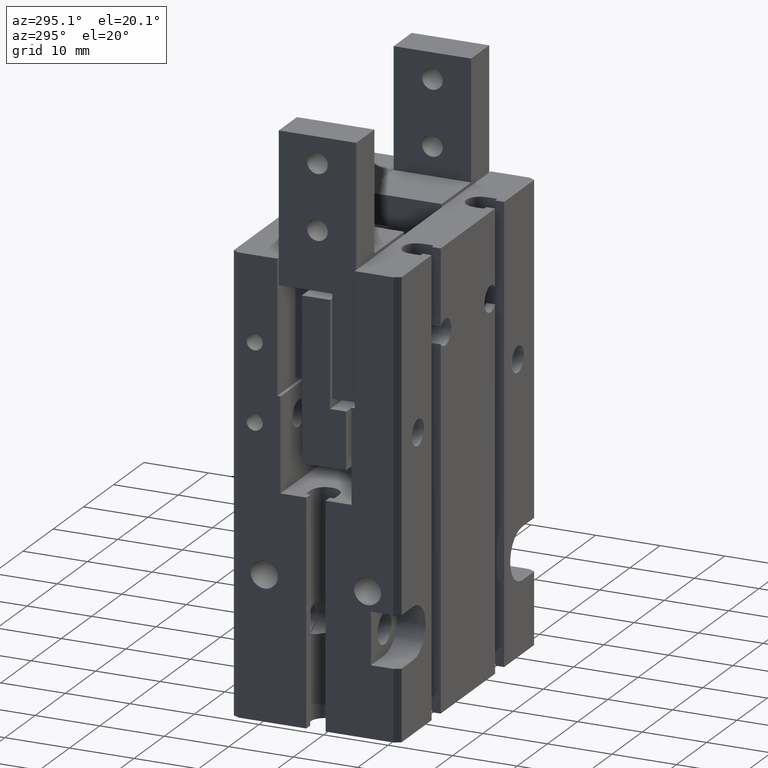
[diagram: clean part render]
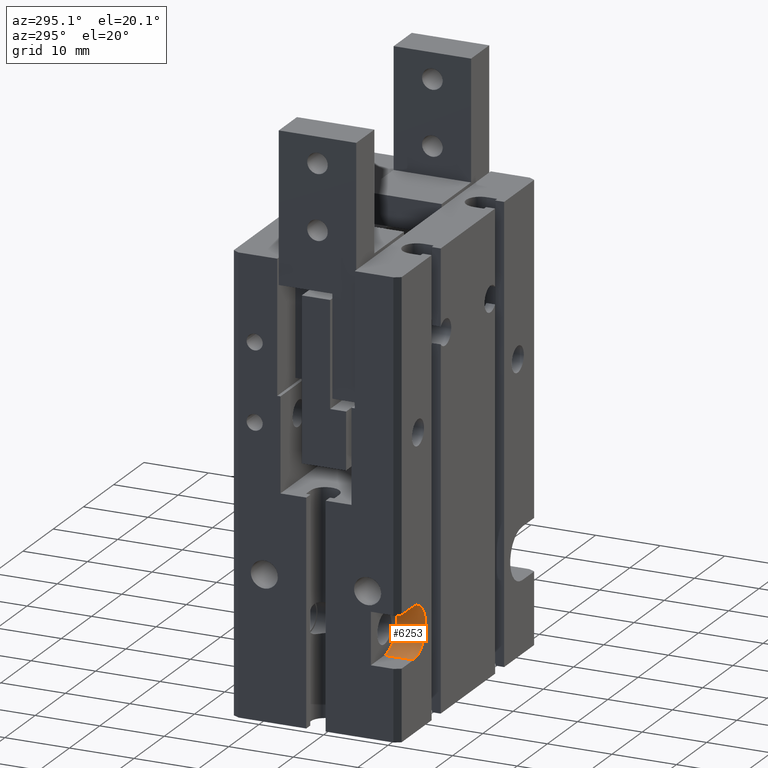
[diagram: same view with one face highlighted and labeled with its STEP entity id]
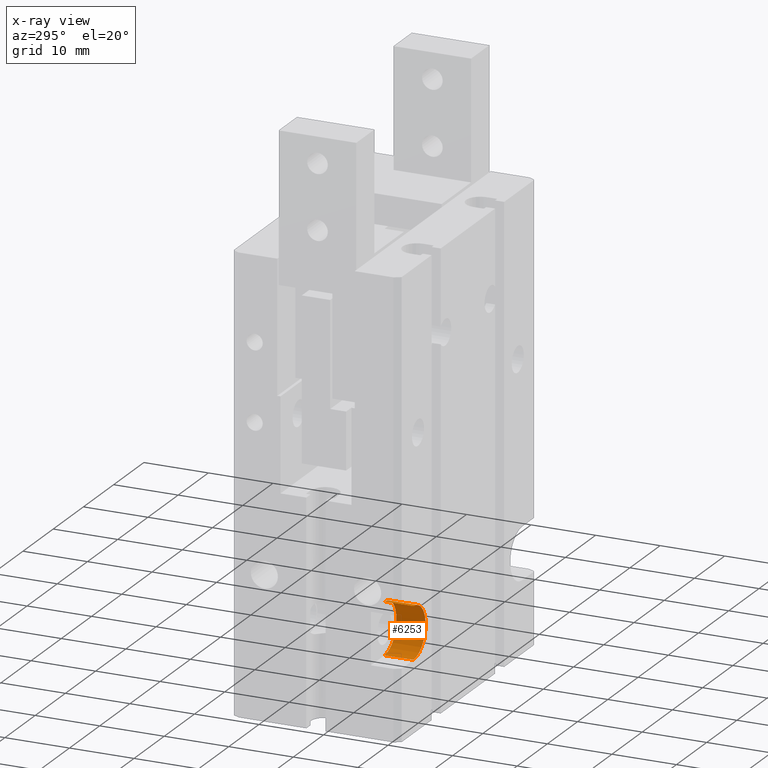
[diagram: x-ray of the same camera — body ghosted, the highlighted face saturated]
A machine part, auxiliary view. The second image highlights one B-rep face of the part: STEP entity #6253.
The next image is the same camera in x-ray: the body ghosted, the highlighted face saturated — about 0% of this face is hidden behind the body in this view.
In plain terms, the highlighted cylindrical surface (edge-blend (fillet) strip) has radius 4 mm, axis along (-0, -1, 0).
Its self-contained STEP definition (entity closure, byte-faithful):
#2863=CARTESIAN_POINT('',(-17.9999869870844,-12.9999869870842,19.));
#2864=VERTEX_POINT('Vertex156',#2863);
#2871=CARTESIAN_POINT('',(-17.9999869870844,-12.9999869870842,11.));
#2872=VERTEX_POINT('Vertex157',#2871);
#2873=CARTESIAN_POINT('',(-17.9999869870844,-12.9999869870842,15.));
#2874=DIRECTION('',(3.10862446895045E-015,1.,0.));
#2875=DIRECTION('',(8.88178419700127E-016,-8.88178419700127E-016,1.));
#2876=AXIS2_PLACEMENT_3D('',#2873,#2874,#2875);
#2877=CIRCLE('nurbsCrv195',#2876,4.);
#2878=EDGE_CURVE('Edge195',#2864,#2872,#2877,.T.);
#5038=CARTESIAN_POINT('',(-17.9999869870843,-8.49998698708421,19.));
#5039=VERTEX_POINT('Vertex265',#5038);
#5046=CARTESIAN_POINT('',(-17.9999869870843,-10.7499869870842,19.));
#5047=DIRECTION('',(-2.368475785867E-015,-1.,0.));
#5048=VECTOR('',#5047,1.);
#5049=LINE('nurbsCrv366',#5046,#5048);
#5050=EDGE_CURVE('Edge366',#5039,#2864,#5049,.T.);
#6229=CARTESIAN_POINT('',(-17.9999869870843,-8.4999869870842,11.));
#6230=VERTEX_POINT('Vertex298',#6229);
#6231=CARTESIAN_POINT('',(-17.9999869870843,-10.7499869870842,11.));
#6232=DIRECTION('',(3.15796771448933E-015,1.,0.));
#6233=VECTOR('',#6232,1.);
#6234=LINE('nurbsCrv419',#6231,#6233);
#6235=EDGE_CURVE('Edge419',#2872,#6230,#6234,.T.);
#6236=ORIENTED_EDGE('Edgeuse804',*,*,#6235,.F.);
#6237=ORIENTED_EDGE('Edgeuse805',*,*,#2878,.F.);
#6238=ORIENTED_EDGE('Edgeuse806',*,*,#5050,.F.);
#6239=CARTESIAN_POINT('',(-17.9999869870843,-8.49998698708421,15.));
#6240=DIRECTION('',(-3.99680288865056E-015,-1.,-3.54987407349455E-030));
#6241=DIRECTION('',(-8.88178419700126E-016,4.44089209850063E-016,-1.));
#6242=AXIS2_PLACEMENT_3D('',#6239,#6240,#6241);
#6243=CIRCLE('nurbsCrv420',#6242,4.);
#6244=EDGE_CURVE('Edge420',#6230,#5039,#6243,.T.);
#6245=ORIENTED_EDGE('Edgeuse807',*,*,#6244,.F.);
#6246=EDGE_LOOP('',(#6236,#6237,#6238,#6245));
#6247=FACE_OUTER_BOUND('',#6246,.T.);
#6248=CARTESIAN_POINT('',(-17.9999869870843,-8.27498698708421,15.));
#6249=DIRECTION('',(-4.30451461808846E-015,-1.,1.18980925743555E-030));
#6250=DIRECTION('',(-1.,4.33295001693101E-015,2.77555756156289E-017));
#6251=AXIS2_PLACEMENT_3D('',#6248,#6249,#6250);
#6252=CYLINDRICAL_SURFACE('nurbsSrf154',#6251,3.99999999999999);
#6253=ADVANCED_FACE('Face154',(#6247),#6252,.F.);